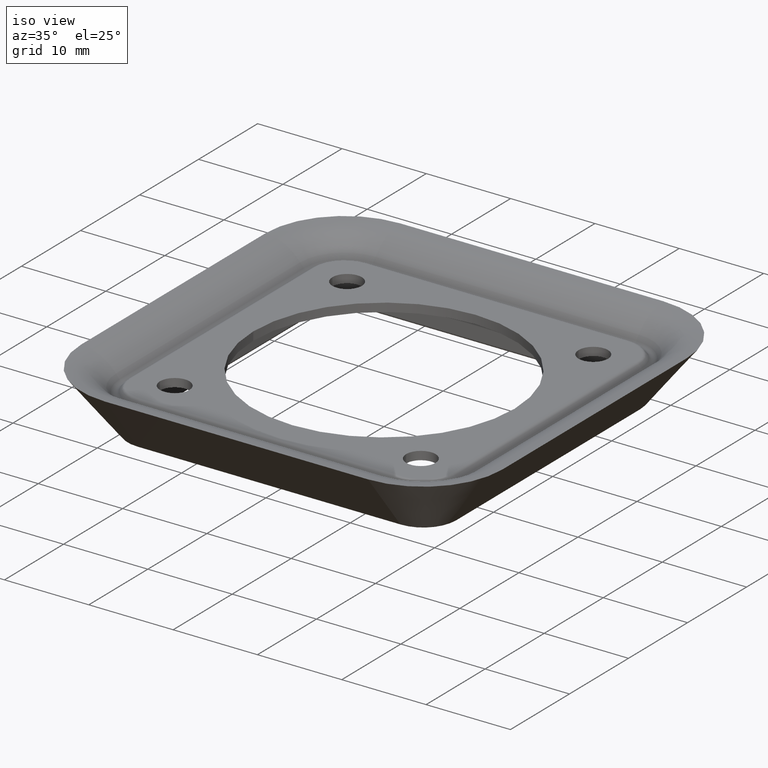
[diagram: clean part render]
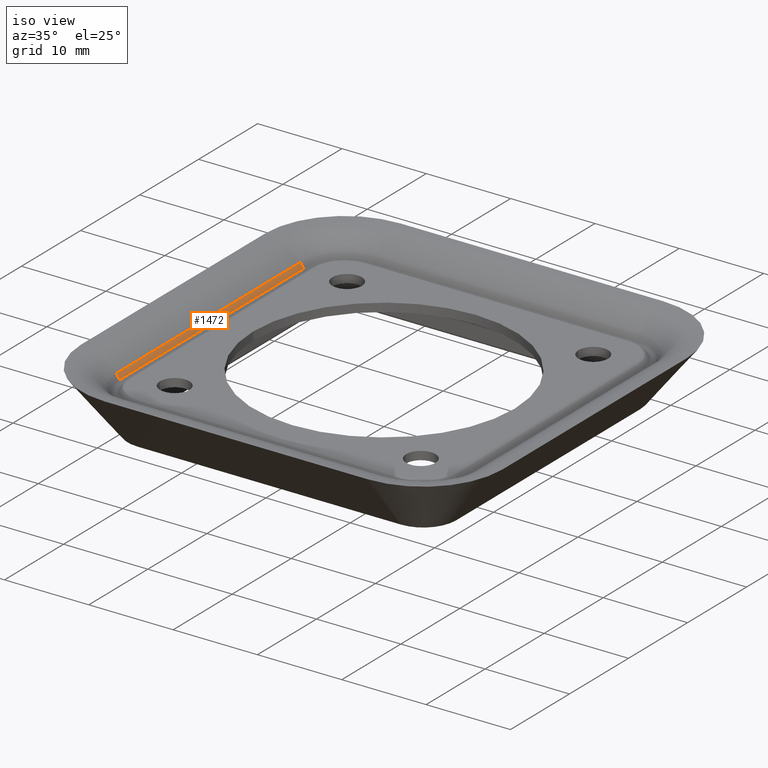
[diagram: same view with one face highlighted and labeled with its STEP entity id]
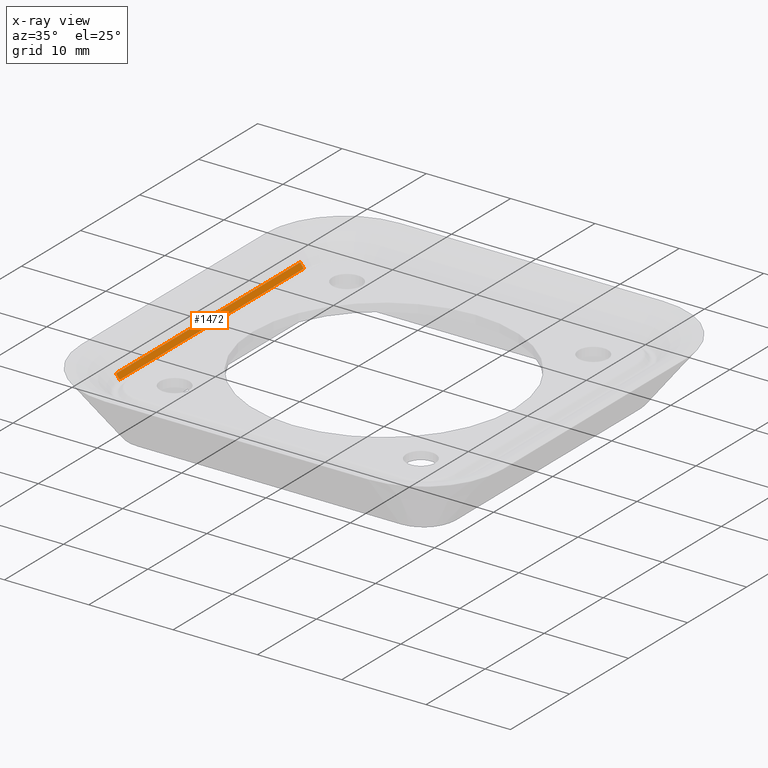
[diagram: x-ray of the same camera — body ghosted, the highlighted face saturated]
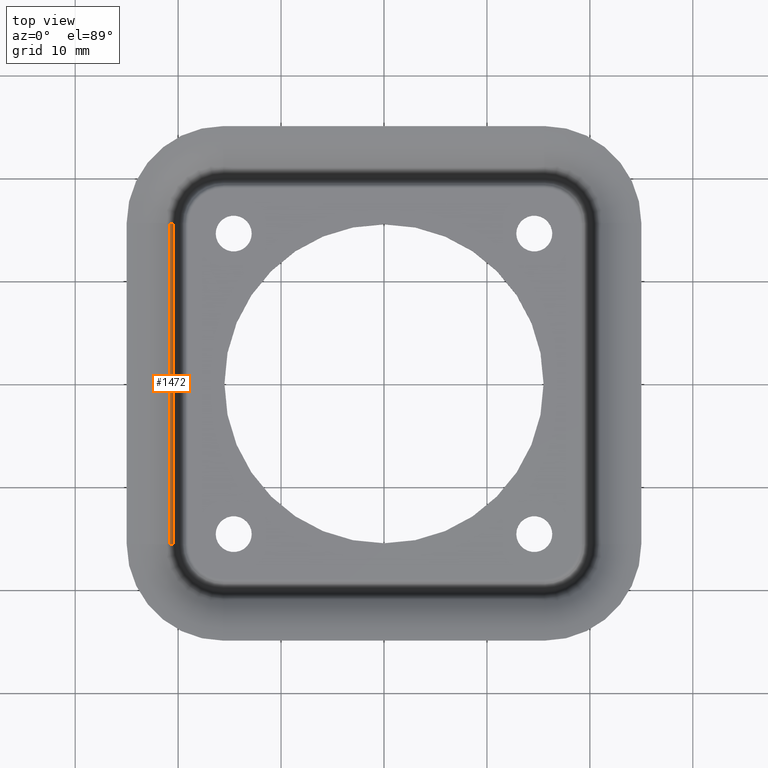
[diagram: same view with one face highlighted and labeled with its STEP entity id]
A machine part, iso view. The second image highlights one B-rep face of the part: STEP entity #1472.
The next image is the same camera in x-ray: the body ghosted, the highlighted face saturated — about 0% of this face is hidden behind the body in this view.
A second angle (top view) of the same face is appended — the face is thin or edge-on in the first view.
In plain terms, the highlighted planar face has unit normal (0.7833, 0, 0.6216).
Its self-contained STEP definition (entity closure, byte-faithful):
#298=DIRECTION('',(-6.216257031183E-1,0.E0,7.833144229636E-1));
#299=VECTOR('',#298,6.955156540090E-1);
#300=CARTESIAN_POINT('',(-2.042722869494E1,1.56E1,4.551925568178E-1));
#301=LINE('',#300,#299);
#302=DIRECTION('',(0.E0,-1.E0,0.E0));
#303=VECTOR('',#302,3.12E1);
#304=CARTESIAN_POINT('',(-2.042722869494E1,1.56E1,4.551925568178E-1));
#305=LINE('',#304,#303);
#306=DIRECTION('',(-6.216257031183E-1,0.E0,7.833144229636E-1));
#307=VECTOR('',#306,6.955156540090E-1);
#308=CARTESIAN_POINT('',(-2.042722869494E1,-1.56E1,4.551925568178E-1));
#309=LINE('',#308,#307);
#421=DIRECTION('',(0.E0,-1.E0,0.E0));
#422=VECTOR('',#421,3.12E1);
#423=CARTESIAN_POINT('',(-2.085957910239E1,1.56E1,1.E0));
#424=LINE('',#423,#422);
#881=CARTESIAN_POINT('',(-2.042722869494E1,1.56E1,4.551925568178E-1));
#882=CARTESIAN_POINT('',(-2.085957910239E1,1.56E1,1.E0));
#883=VERTEX_POINT('',#881);
#884=VERTEX_POINT('',#882);
#889=CARTESIAN_POINT('',(-2.042722869494E1,-1.56E1,4.551925568178E-1));
#890=CARTESIAN_POINT('',(-2.085957910239E1,-1.56E1,1.E0));
#891=VERTEX_POINT('',#889);
#892=VERTEX_POINT('',#890);
#1459=CARTESIAN_POINT('',(-2.042722869494E1,1.56E1,4.551925568178E-1));
#1460=DIRECTION('',(7.833144229636E-1,0.E0,6.216257031183E-1));
#1461=DIRECTION('',(-6.216257031183E-1,0.E0,7.833144229636E-1));
#1462=AXIS2_PLACEMENT_3D('',#1459,#1460,#1461);
#1463=PLANE('',#1462);
#1464=ORIENTED_EDGE('',*,*,#1452,.F.);
#1465=ORIENTED_EDGE('',*,*,#1397,.T.);
#1467=ORIENTED_EDGE('',*,*,#1466,.T.);
#1469=ORIENTED_EDGE('',*,*,#1468,.F.);
#1470=EDGE_LOOP('',(#1464,#1465,#1467,#1469));
#1471=FACE_OUTER_BOUND('',#1470,.F.);
#1472=ADVANCED_FACE('',(#1471),#1463,.T.);
#1397=EDGE_CURVE('',#883,#891,#305,.T.);
#1452=EDGE_CURVE('',#883,#884,#301,.T.);
#1466=EDGE_CURVE('',#891,#892,#309,.T.);
#1468=EDGE_CURVE('',#884,#892,#424,.T.);